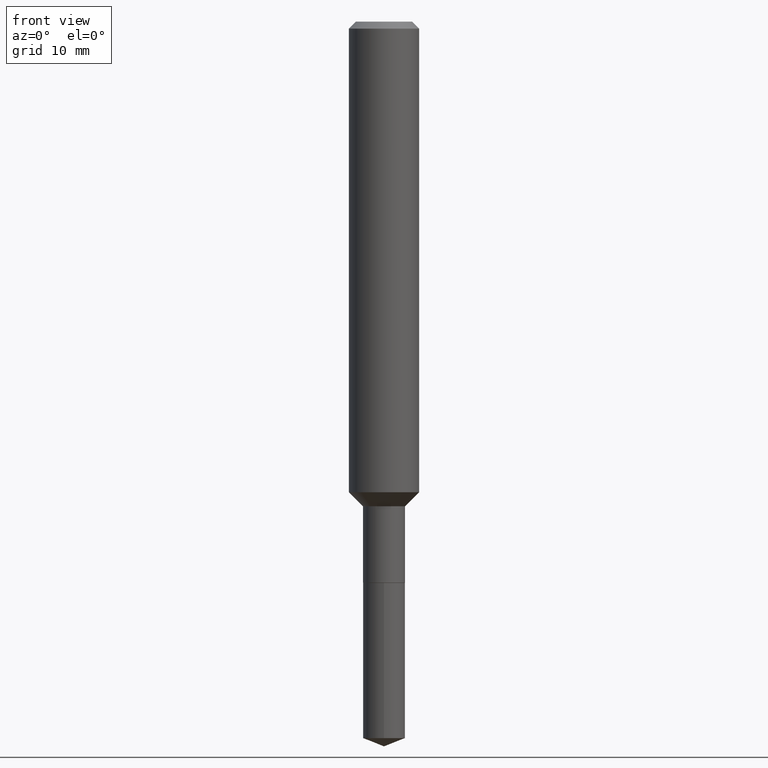
[diagram: clean part render]
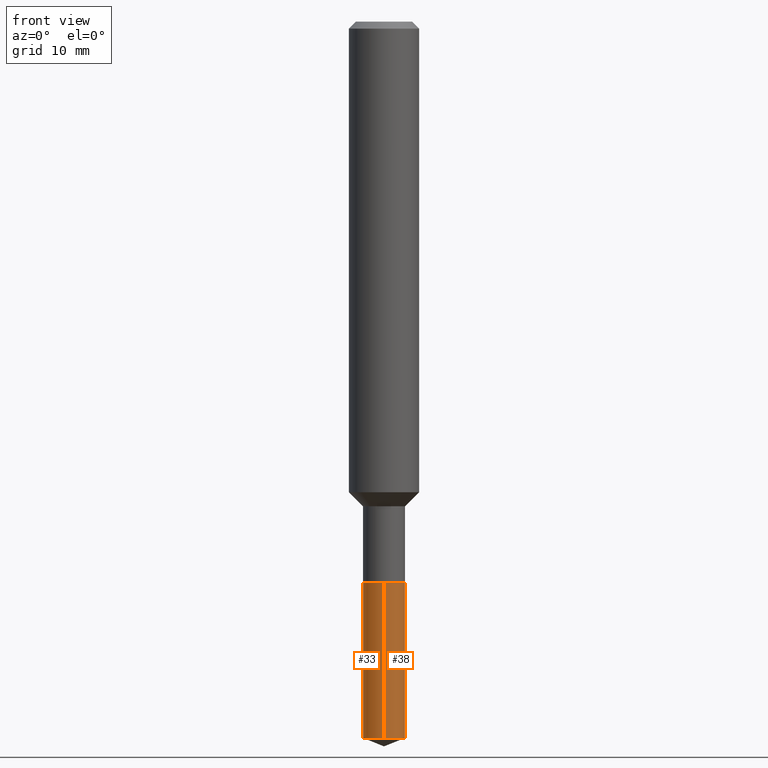
[diagram: same view with one multi-face feature highlighted, each face labeled with its STEP entity id]
A machine part, front view. The highlighted faces form ONE feature: a constant-radius fillet chain: 2 tangent blend faces with common blend radius 1.7996 mm. The faces share edges in the B-rep.
Their STEP definitions:
[1] entity #38 (Cylinder):
#38 = ADVANCED_FACE ( 'NONE', ( #394 ), #327, .T. ) ;
#40 = EDGE_CURVE ( 'NONE', #320, #455, #396, .T. ) ;
#57 = EDGE_CURVE ( 'NONE', #455, #97, #348, .T. ) ;
#59 = AXIS2_PLACEMENT_3D ( 'NONE', #337, #297, #138 ) ;
#61 = LINE ( 'NONE', #226, #303 ) ;
#69 = DIRECTION ( 'NONE',  ( -2.434988852863248882E-29, 3.506489228481988303E-15, 1.000000000000000000 ) ) ;
#97 = VERTEX_POINT ( 'NONE', #267 ) ;
#100 = CARTESIAN_POINT ( 'NONE',  ( -4.947429057140257124E-16, -0.07085000000000658826, -1.889699999999999713 ) ) ;
#124 = ORIENTED_EDGE ( 'NONE', *, *, #464, .T. ) ;
#132 = ORIENTED_EDGE ( 'NONE', *, *, #57, .F. ) ;
#138 = DIRECTION ( 'NONE',  ( -6.982962677686265133E-15, -1.000000000000000000, 3.855819327684210983E-15 ) ) ;
#139 = DIRECTION ( 'NONE',  ( -6.982962677686266711E-15, -1.000000000000000000, 3.855819327684210983E-15 ) ) ;
#148 = VECTOR ( 'NONE', #69, 39.37007874015748143 ) ;
#161 = EDGE_LOOP ( 'NONE', ( #124, #275, #132, #359 ) ) ;
#163 = CARTESIAN_POINT ( 'NONE',  ( 4.621202403048053204E-29, -6.597852286011892490E-15, -1.889700000000000157 ) ) ;
#169 = VERTEX_POINT ( 'NONE', #222 ) ;
#173 = CARTESIAN_POINT ( 'NONE',  ( 5.895411233071309242E-29, -8.432768093556294128E-15, -2.412991442802681963 ) ) ;
#175 = EDGE_CURVE ( 'NONE', #169, #97, #61, .T. ) ;
#217 = DIRECTION ( 'NONE',  ( -2.434988852863248882E-29, 3.506489228481988303E-15, 1.000000000000000000 ) ) ;
#222 = CARTESIAN_POINT ( 'NONE',  ( 5.034195282860899229E-16, 0.07084999999999157250, -2.412991442802681963 ) ) ;
#226 = CARTESIAN_POINT ( 'NONE',  ( 5.034195282860771039E-16, 0.07084999999999339049, -1.889700000000000379 ) ) ;
#267 = CARTESIAN_POINT ( 'NONE',  ( 5.034195282860899229E-16, 0.07084999999999339049, -1.889700000000000379 ) ) ;
#275 = ORIENTED_EDGE ( 'NONE', *, *, #175, .T. ) ;
#287 = CARTESIAN_POINT ( 'NONE',  ( -4.947429057140129920E-16, -0.07085000000000843401, -2.412991442802681519 ) ) ;
#288 = DIRECTION ( 'NONE',  ( -2.434988852863249163E-29, 3.506489228481988303E-15, 1.000000000000000000 ) ) ;
#297 = DIRECTION ( 'NONE',  ( -2.434988852863249163E-29, 3.506489228481988303E-15, 1.000000000000000000 ) ) ;
#303 = VECTOR ( 'NONE', #217, 39.37007874015748143 ) ;
#320 = VERTEX_POINT ( 'NONE', #287 ) ;
#327 = CYLINDRICAL_SURFACE ( 'NONE', #364, 0.07084999999999999631 ) ;
#334 = DIRECTION ( 'NONE',  ( -2.434988852863249163E-29, 3.506489228481988303E-15, 1.000000000000000000 ) ) ;
#337 = CARTESIAN_POINT ( 'NONE',  ( 4.621202403048053204E-29, -6.597852286011892490E-15, -1.889700000000000157 ) ) ;
#348 = CIRCLE ( 'NONE', #59, 0.07084999999999999631 ) ;
#358 = CIRCLE ( 'NONE', #413, 0.07084999999999999631 ) ;
#359 = ORIENTED_EDGE ( 'NONE', *, *, #40, .F. ) ;
#364 = AXIS2_PLACEMENT_3D ( 'NONE', #163, #288, #430 ) ;
#370 = CARTESIAN_POINT ( 'NONE',  ( -4.947429057140257124E-16, -0.07085000000000658826, -1.889699999999999713 ) ) ;
#394 = FACE_OUTER_BOUND ( 'NONE', #161, .T. ) ;
#396 = LINE ( 'NONE', #100, #148 ) ;
#413 = AXIS2_PLACEMENT_3D ( 'NONE', #173, #334, #139 ) ;
#430 = DIRECTION ( 'NONE',  ( -6.982962677686265133E-15, -1.000000000000000000, 3.855819327684210983E-15 ) ) ;
#455 = VERTEX_POINT ( 'NONE', #370 ) ;
#464 = EDGE_CURVE ( 'NONE', #320, #169, #358, .T. ) ;
[2] entity #33 (Cylinder):
#11 = CARTESIAN_POINT ( 'NONE',  ( 4.621202403048053204E-29, -6.597852286011892490E-15, -1.889700000000000157 ) ) ;
#15 = CYLINDRICAL_SURFACE ( 'NONE', #417, 0.07084999999999999631 ) ;
#16 = AXIS2_PLACEMENT_3D ( 'NONE', #438, #63, #409 ) ;
#33 = ADVANCED_FACE ( 'NONE', ( #203 ), #15, .T. ) ;
#40 = EDGE_CURVE ( 'NONE', #320, #455, #396, .T. ) ;
#42 = ORIENTED_EDGE ( 'NONE', *, *, #40, .T. ) ;
#61 = LINE ( 'NONE', #226, #303 ) ;
#63 = DIRECTION ( 'NONE',  ( -2.434988852863249163E-29, 3.506489228481988303E-15, 1.000000000000000000 ) ) ;
#69 = DIRECTION ( 'NONE',  ( -2.434988852863248882E-29, 3.506489228481988303E-15, 1.000000000000000000 ) ) ;
#78 = EDGE_LOOP ( 'NONE', ( #152, #465, #42, #460 ) ) ;
#97 = VERTEX_POINT ( 'NONE', #267 ) ;
#100 = CARTESIAN_POINT ( 'NONE',  ( -4.947429057140257124E-16, -0.07085000000000658826, -1.889699999999999713 ) ) ;
#106 = EDGE_CURVE ( 'NONE', #97, #455, #476, .T. ) ;
#125 = DIRECTION ( 'NONE',  ( -2.434988852863249163E-29, 3.506489228481988303E-15, 1.000000000000000000 ) ) ;
#148 = VECTOR ( 'NONE', #69, 39.37007874015748143 ) ;
#152 = ORIENTED_EDGE ( 'NONE', *, *, #175, .F. ) ;
#169 = VERTEX_POINT ( 'NONE', #222 ) ;
#175 = EDGE_CURVE ( 'NONE', #169, #97, #61, .T. ) ;
#203 = FACE_OUTER_BOUND ( 'NONE', #78, .T. ) ;
#217 = DIRECTION ( 'NONE',  ( -2.434988852863248882E-29, 3.506489228481988303E-15, 1.000000000000000000 ) ) ;
#222 = CARTESIAN_POINT ( 'NONE',  ( 5.034195282860899229E-16, 0.07084999999999157250, -2.412991442802681963 ) ) ;
#226 = CARTESIAN_POINT ( 'NONE',  ( 5.034195282860771039E-16, 0.07084999999999339049, -1.889700000000000379 ) ) ;
#267 = CARTESIAN_POINT ( 'NONE',  ( 5.034195282860899229E-16, 0.07084999999999339049, -1.889700000000000379 ) ) ;
#287 = CARTESIAN_POINT ( 'NONE',  ( -4.947429057140129920E-16, -0.07085000000000843401, -2.412991442802681519 ) ) ;
#291 = EDGE_CURVE ( 'NONE', #169, #320, #429, .T. ) ;
#303 = VECTOR ( 'NONE', #217, 39.37007874015748143 ) ;
#320 = VERTEX_POINT ( 'NONE', #287 ) ;
#322 = DIRECTION ( 'NONE',  ( -2.434988852863249163E-29, 3.506489228481988303E-15, 1.000000000000000000 ) ) ;
#349 = AXIS2_PLACEMENT_3D ( 'NONE', #468, #125, #466 ) ;
#370 = CARTESIAN_POINT ( 'NONE',  ( -4.947429057140257124E-16, -0.07085000000000658826, -1.889699999999999713 ) ) ;
#396 = LINE ( 'NONE', #100, #148 ) ;
#409 = DIRECTION ( 'NONE',  ( -6.982962677686265133E-15, -1.000000000000000000, 3.855819327684210983E-15 ) ) ;
#417 = AXIS2_PLACEMENT_3D ( 'NONE', #11, #322, #426 ) ;
#426 = DIRECTION ( 'NONE',  ( -6.982962677686265133E-15, -1.000000000000000000, 3.855819327684210983E-15 ) ) ;
#429 = CIRCLE ( 'NONE', #349, 0.07084999999999999631 ) ;
#438 = CARTESIAN_POINT ( 'NONE',  ( 4.621202403048053204E-29, -6.597852286011892490E-15, -1.889700000000000157 ) ) ;
#455 = VERTEX_POINT ( 'NONE', #370 ) ;
#460 = ORIENTED_EDGE ( 'NONE', *, *, #106, .F. ) ;
#465 = ORIENTED_EDGE ( 'NONE', *, *, #291, .T. ) ;
#466 = DIRECTION ( 'NONE',  ( -6.982962677686266711E-15, -1.000000000000000000, 3.855819327684210983E-15 ) ) ;
#468 = CARTESIAN_POINT ( 'NONE',  ( 5.895411233071309242E-29, -8.432768093556294128E-15, -2.412991442802681963 ) ) ;
#476 = CIRCLE ( 'NONE', #16, 0.07084999999999999631 ) ;